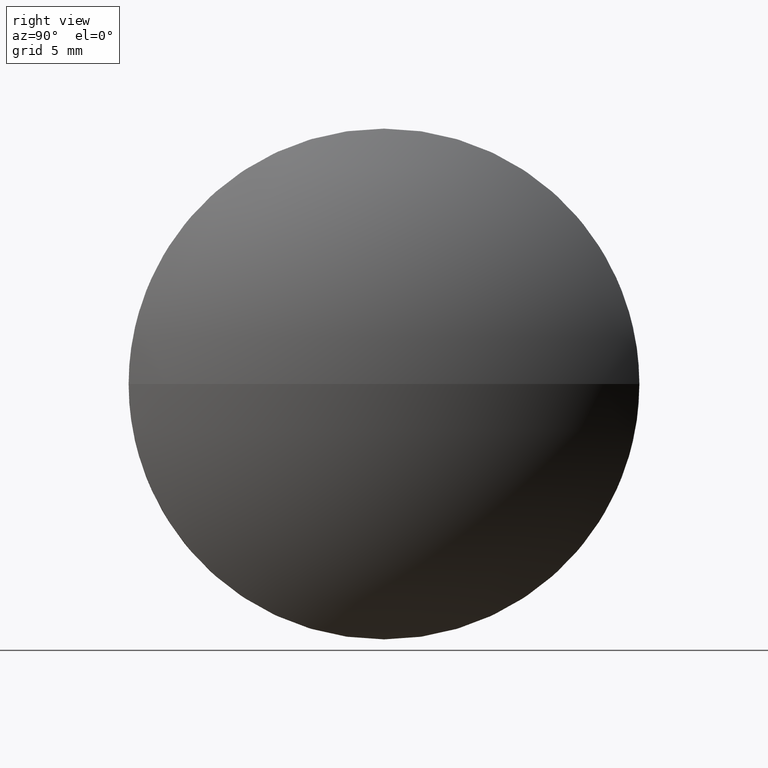
[diagram: clean part render]
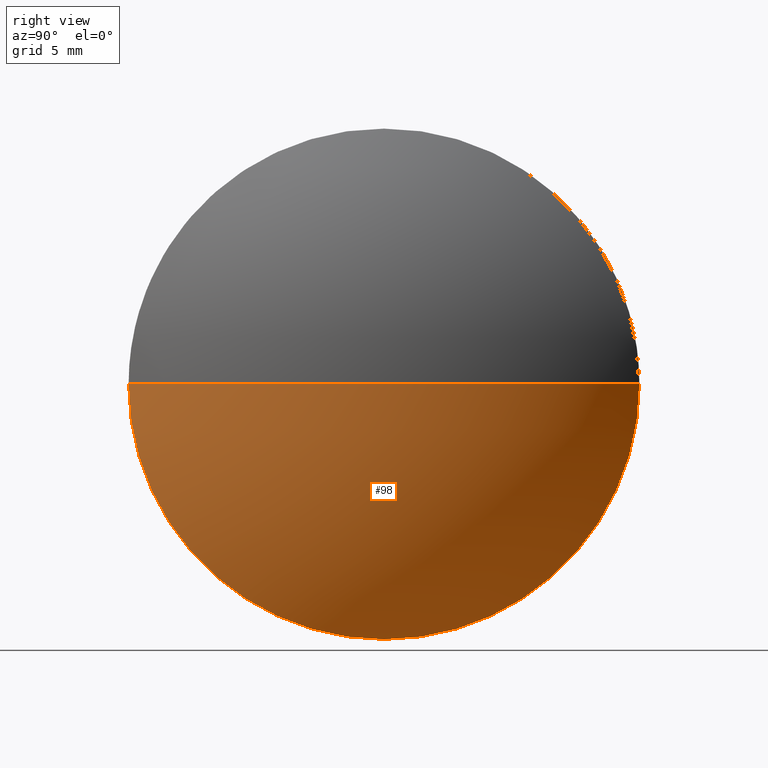
[diagram: same view with one face highlighted and labeled with its STEP entity id]
A machine part, right view. The second image highlights one B-rep face of the part: STEP entity #98.
In plain terms, the highlighted spherical surface has radius 15.4881 mm.
Its self-contained STEP definition (entity closure, byte-faithful):
#1 = EDGE_CURVE ( 'NONE', #84, #19, #34, .T. ) ;
#2 = AXIS2_PLACEMENT_3D ( 'NONE', #182, #22, #117 ) ;
#6 = CIRCLE ( 'NONE', #2, 9.999999999999994700 ) ;
#12 = DIRECTION ( 'NONE',  ( 0.0000000000000000000, 1.224646799147353200E-016, -1.000000000000000000 ) ) ;
#19 = VERTEX_POINT ( 'NONE', #146 ) ;
#22 = DIRECTION ( 'NONE',  ( -1.000000000000000000, -0.0000000000000000000, -0.0000000000000000000 ) ) ;
#25 = AXIS2_PLACEMENT_3D ( 'NONE', #161, #158, #102 ) ;
#34 = CIRCLE ( 'NONE', #25, 9.999999999999994700 ) ;
#36 = CARTESIAN_POINT ( 'NONE',  ( 422.8044958310844700, 97.54092323461678400, 0.0000000000000000000 ) ) ;
#38 = AXIS2_PLACEMENT_3D ( 'NONE', #185, #12, #64 ) ;
#44 = ORIENTED_EDGE ( 'NONE', *, *, #82, .F. ) ;
#49 = CARTESIAN_POINT ( 'NONE',  ( 434.6316024094511500, 87.54092323461678400, -1.224646799147352500E-015 ) ) ;
#63 = CARTESIAN_POINT ( 'NONE',  ( 422.8044958310844700, 97.54092323461678400, 0.0000000000000000000 ) ) ;
#64 = DIRECTION ( 'NONE',  ( 0.0000000000000000000, 1.000000000000000000, 1.224646799147353200E-016 ) ) ;
#66 = CIRCLE ( 'NONE', #69, 15.48807444507044400 ) ;
#69 = AXIS2_PLACEMENT_3D ( 'NONE', #63, #75, #184 ) ;
#70 = CIRCLE ( 'NONE', #38, 15.48807444507044400 ) ;
#73 = ORIENTED_EDGE ( 'NONE', *, *, #106, .T. ) ;
#74 = DIRECTION ( 'NONE',  ( -0.0000000000000000000, 0.0000000000000000000, -1.000000000000000000 ) ) ;
#75 = DIRECTION ( 'NONE',  ( -0.0000000000000000000, 0.0000000000000000000, 1.000000000000000000 ) ) ;
#81 = VERTEX_POINT ( 'NONE', #49 ) ;
#82 = EDGE_CURVE ( 'NONE', #19, #81, #6, .T. ) ;
#84 = VERTEX_POINT ( 'NONE', #148 ) ;
#90 = CARTESIAN_POINT ( 'NONE',  ( 438.2925702761549500, 97.54092323461678400, 0.0000000000000000000 ) ) ;
#98 = ADVANCED_FACE ( 'NONE', ( #115 ), #172, .T. ) ;
#102 = DIRECTION ( 'NONE',  ( 0.0000000000000000000, 0.0000000000000000000, 1.000000000000000000 ) ) ;
#106 = EDGE_CURVE ( 'NONE', #131, #81, #70, .T. ) ;
#111 = AXIS2_PLACEMENT_3D ( 'NONE', #36, #74, #140 ) ;
#115 = FACE_OUTER_BOUND ( 'NONE', #135, .T. ) ;
#117 = DIRECTION ( 'NONE',  ( 0.0000000000000000000, 0.0000000000000000000, 1.000000000000000000 ) ) ;
#124 = ORIENTED_EDGE ( 'NONE', *, *, #127, .F. ) ;
#127 = EDGE_CURVE ( 'NONE', #131, #84, #66, .T. ) ;
#131 = VERTEX_POINT ( 'NONE', #90 ) ;
#135 = EDGE_LOOP ( 'NONE', ( #124, #73, #44, #177 ) ) ;
#140 = DIRECTION ( 'NONE',  ( 0.0000000000000000000, 1.000000000000000000, 0.0000000000000000000 ) ) ;
#146 = CARTESIAN_POINT ( 'NONE',  ( 434.6316024094511500, 97.54092323461679800, -9.999999999999994700 ) ) ;
#148 = CARTESIAN_POINT ( 'NONE',  ( 434.6316024094511500, 107.5409232346168000, 0.0000000000000000000 ) ) ;
#158 = DIRECTION ( 'NONE',  ( -1.000000000000000000, -0.0000000000000000000, -0.0000000000000000000 ) ) ;
#161 = CARTESIAN_POINT ( 'NONE',  ( 434.6316024094511500, 97.54092323461679800, 0.0000000000000000000 ) ) ;
#172 = SPHERICAL_SURFACE ( 'NONE', #111, 15.48807444507044400 ) ;
#177 = ORIENTED_EDGE ( 'NONE', *, *, #1, .F. ) ;
#182 = CARTESIAN_POINT ( 'NONE',  ( 434.6316024094511500, 97.54092323461679800, 0.0000000000000000000 ) ) ;
#184 = DIRECTION ( 'NONE',  ( 1.000000000000000000, 0.0000000000000000000, 0.0000000000000000000 ) ) ;
#185 = CARTESIAN_POINT ( 'NONE',  ( 422.8044958310844700, 97.54092323461678400, 0.0000000000000000000 ) ) ;